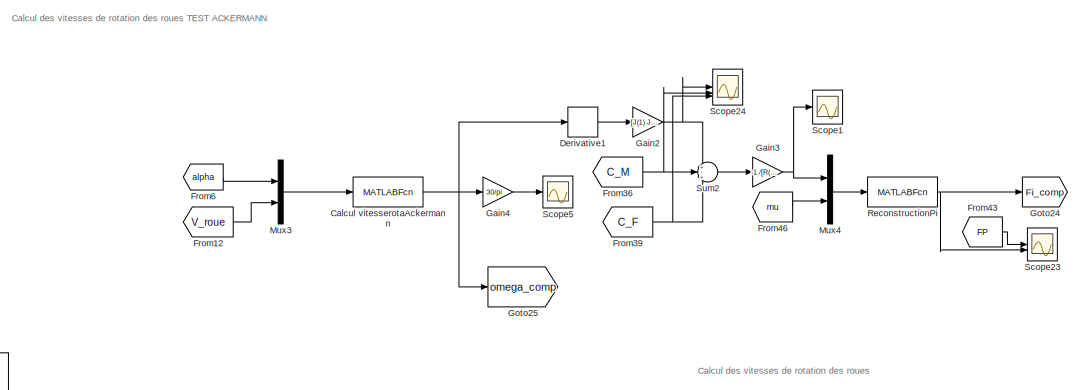
[diagram: root canvas - part 1/7, top right region]
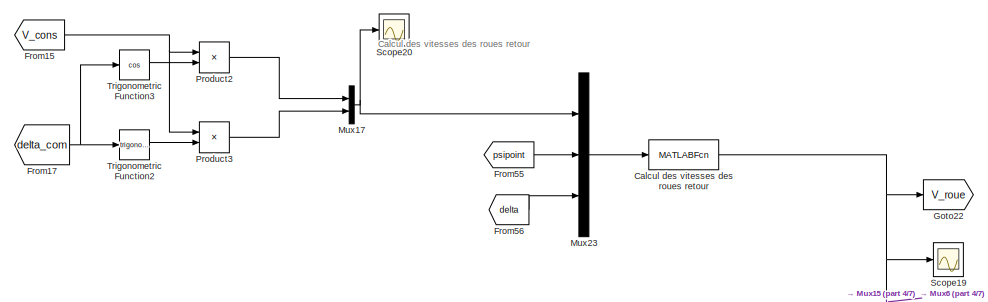
[diagram: root canvas - part 2/7, top center region]
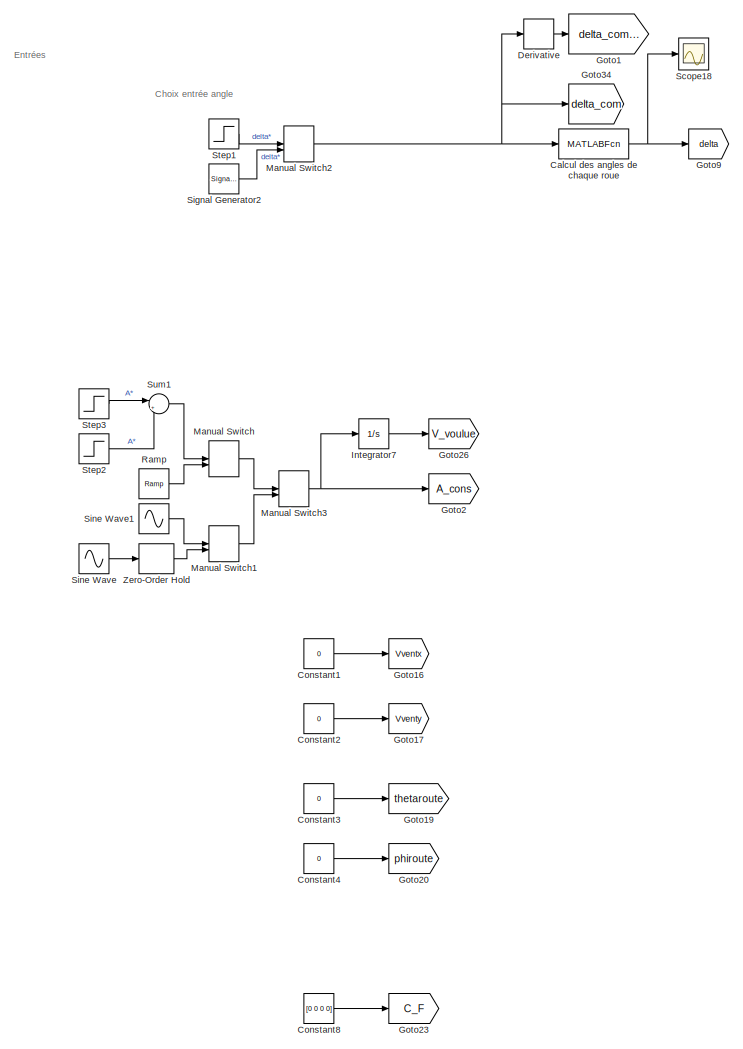
[diagram: root canvas - part 3/7, middle left region]
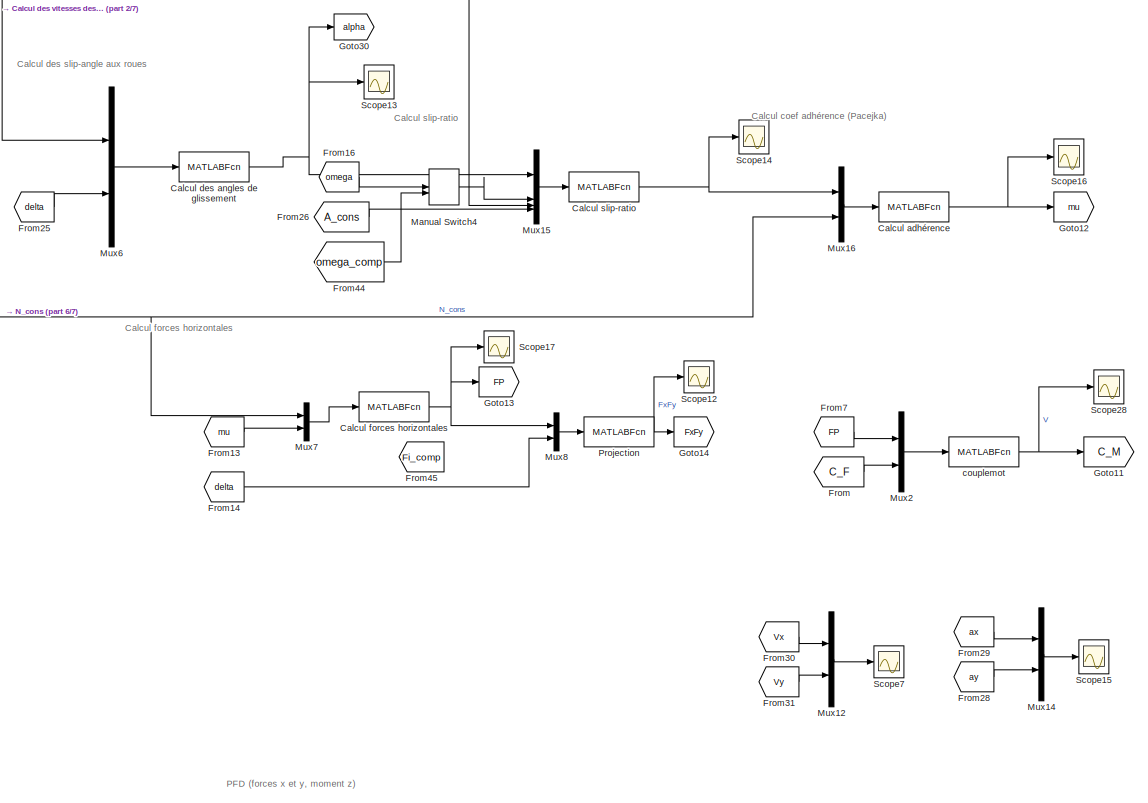
[diagram: root canvas - part 4/7, central region]
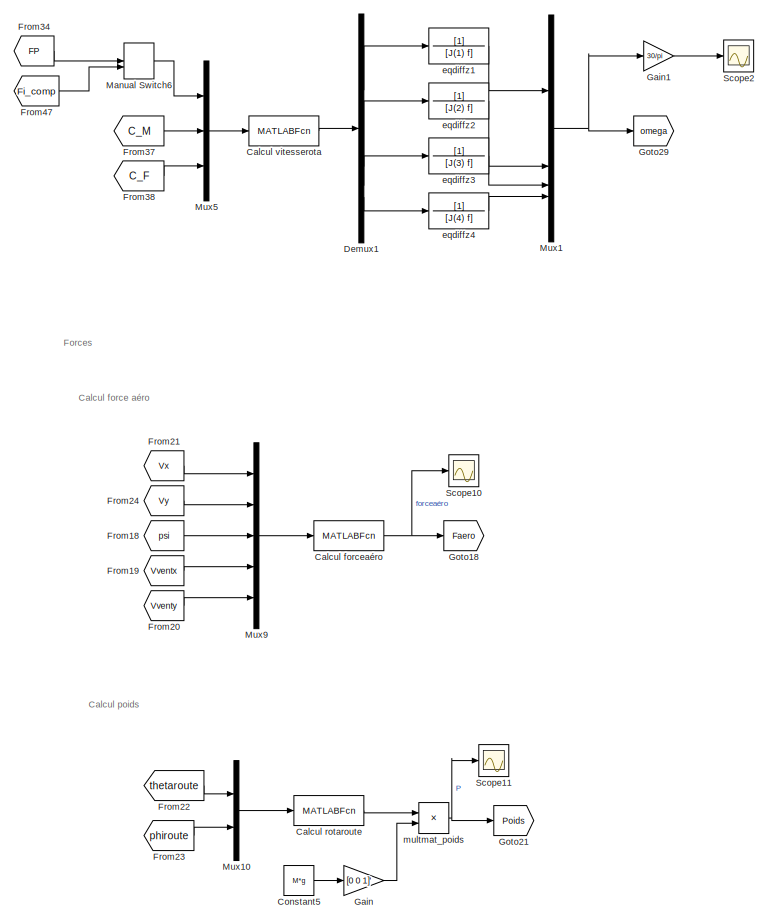
[diagram: root canvas - part 5/7, middle right region]
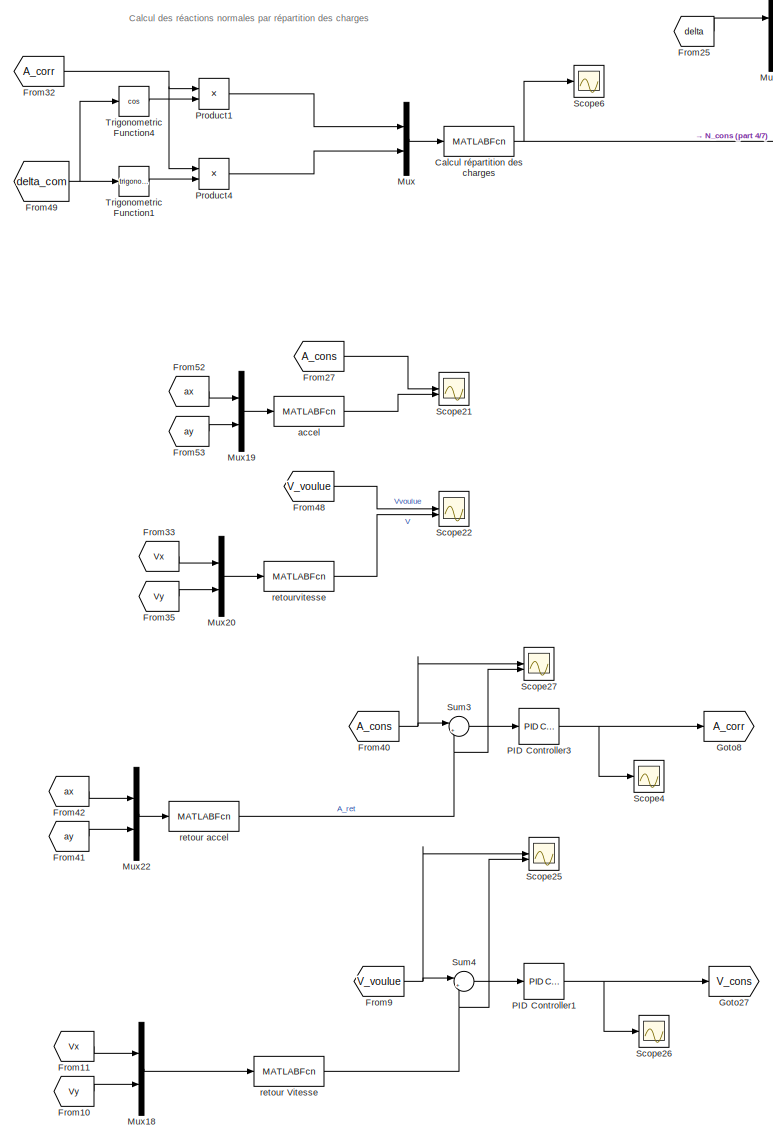
[diagram: root canvas - part 6/7, bottom center region]
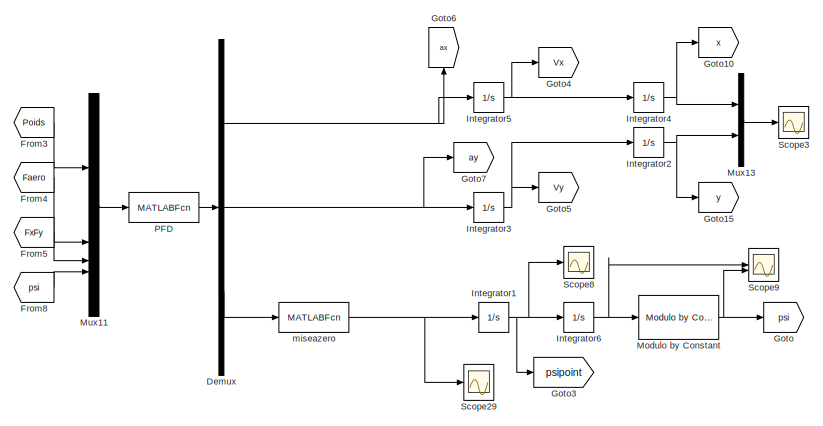
[diagram: root canvas - part 7/7, bottom center region]
MODEL slx_7ebd203fe06b
KIND model
CONFIG AbsTol = auto
CONFIG EnableMultiTasking = off
CONFIG FixedStep = auto
CONFIG MaxStep = auto
CONFIG MinStep = auto
CONFIG RelTol = 10e-12
CONFIG SampleTimeConstraint = Unconstrained
CONFIG SolverName = VariableStepAuto
CONFIG StartTime = 0.0
CONFIG StopTime = 20
BLOCK [MATLABFcn] Calcul adhérence
  MATLABFcn = calcul_adherence(u(1),u(2),u(3),u(4),u(5),u(6),u(7),u(8),Cte_1,Cte_2,Cte_3,Cte_4,u(9),u(10),u(11),u(12))
  OutputDimensions = 4*2
BLOCK [MATLABFcn] Calcul des angles de chaque roue
  MATLABFcn = calcul_delta(u,L,d_f)
  OutputDimensions = 4
BLOCK [MATLABFcn] Calcul des angles de glissement
  MATLABFcn = calcul_slipangle(u(1),u(2),u(3),u(4),u(5),u(6),u(7),u(8),u(9),u(10),u(11),u(12))
  OutputDimensions = 4
BLOCK [MATLABFcn] Calcul des vitesses des roues retour
  MATLABFcn = calcul_vitessesroues(u(1),u(2),u(3),u(4),u(5),u(6),u(7),d_f,d_r,l_f,l_r)
  OutputDimensions = 8
BLOCK [MATLABFcn] Calcul forceaéro
  MATLABFcn = calcul_forceaero(u(1),u(2),u(3),u(4),u(5),C_x,A_L,A_S,rho)
  OutputDimensions = 2
BLOCK [MATLABFcn] Calcul forces horizontales
  MATLABFcn = calcul_forces(u(1),u(2),u(3),u(4),u(5),u(6),u(7),u(8),u(9),u(10),u(11),u(12))
  OutputDimensions = 4*2
BLOCK [MATLABFcn] Calcul rotaroute
  MATLABFcn = calcul_rotaroute(u(1),u(2))
  Output1D = off
  OutputDimensions = [3 3]
BLOCK [MATLABFcn] Calcul répartition des charges
  MATLABFcn = calcul_N(u(1),u(2),M,L,l_r,h,g)
  OutputDimensions = 4
BLOCK [MATLABFcn] Calcul slip-ratio
  MATLABFcn = calcul_lambda(u(1),u(2),u(3),u(4),R(1),R(2),R(3),R(4),u(5),u(6),u(7),u(8),u(9),u(10),u(11),u(12),u(13),u(14),u(15),u(16),u(17))
  OutputDimensions = 4*2
BLOCK [MATLABFcn] Calcul vitesserota
  MATLABFcn = calcul_omega(u(1),u(2),u(3),u(4),u(5),u(6),u(7),u(8),u(9),u(10),u(11),u(12),u(13),u(14),u(15),u(16),R(1),R(2),R(3),R(4),J(1),J(2),J(3),J(4))
  OutputDimensions = 4
BLOCK [MATLABFcn] Calcul vitesserotaAckermann
  MATLABFcn = calcul_omegaackermann(u(1),u(2),u(3),u(4),u(5),u(6),u(7),u(8),u(9),u(10),u(11),u(12),R(1),R(2),R(3),R(4))
  OutputDimensions = 4
BLOCK [Constant] Constant1
  Value = 0
BLOCK [Constant] Constant2
  Value = 0
BLOCK [Constant] Constant3
  Value = 0
BLOCK [Constant] Constant4
  Value = 0
BLOCK [Constant] Constant5
  Value = M*g
  VectorParams1D = off
BLOCK [Constant] Constant8
  Value = [0 0 0 0]
BLOCK [Demux] Demux
  Outputs = 3
BLOCK [Demux] Demux1
BLOCK [Derivative] Derivative
BLOCK [Derivative] Derivative1
BLOCK [From] From
  GotoTag = C_F
BLOCK [From] From10
  GotoTag = Vy
BLOCK [From] From11
  GotoTag = Vx
BLOCK [From] From12
  GotoTag = V_roue
BLOCK [From] From13
  GotoTag = mu
BLOCK [From] From14
  GotoTag = delta
BLOCK [From] From15
  GotoTag = V_cons
BLOCK [From] From16
  GotoTag = omega
BLOCK [From] From17
  GotoTag = delta_com
BLOCK [From] From18
  GotoTag = psi
BLOCK [From] From19
  GotoTag = Vventx
BLOCK [From] From20
  GotoTag = Vventy
BLOCK [From] From21
  GotoTag = Vx
BLOCK [From] From22
  GotoTag = thetaroute
BLOCK [From] From23
  GotoTag = phiroute
BLOCK [From] From24
  GotoTag = Vy
BLOCK [From] From25
  GotoTag = delta
BLOCK [From] From26
  GotoTag = A_cons
BLOCK [From] From27
  GotoTag = A_cons
BLOCK [From] From28
  GotoTag = ay
BLOCK [From] From29
  GotoTag = ax
BLOCK [From] From3
  GotoTag = Poids
BLOCK [From] From30
  GotoTag = Vx
BLOCK [From] From31
  GotoTag = Vy
BLOCK [From] From32
  GotoTag = A_corr
BLOCK [From] From33
  GotoTag = Vx
BLOCK [From] From34
  GotoTag = FP
BLOCK [From] From35
  GotoTag = Vy
BLOCK [From] From36
  GotoTag = C_M
BLOCK [From] From37
  GotoTag = C_M
BLOCK [From] From38
  GotoTag = C_F
BLOCK [From] From39
  GotoTag = C_F
BLOCK [From] From4
  GotoTag = Faero
BLOCK [From] From40
  GotoTag = A_cons
BLOCK [From] From41
  GotoTag = ay
BLOCK [From] From42
  GotoTag = ax
BLOCK [From] From43
  GotoTag = FP
BLOCK [From] From44
  GotoTag = omega_comp
BLOCK [From] From45
  GotoTag = Fi_comp
BLOCK [From] From46
  GotoTag = mu
BLOCK [From] From47
  GotoTag = Fi_comp
BLOCK [From] From48
  GotoTag = V_voulue
BLOCK [From] From49
  GotoTag = delta_com
BLOCK [From] From5
  GotoTag = FxFy
BLOCK [From] From52
  GotoTag = ax
BLOCK [From] From53
  GotoTag = ay
BLOCK [From] From55
  GotoTag = psipoint
BLOCK [From] From56
  GotoTag = delta
BLOCK [From] From6
  GotoTag = alpha
BLOCK [From] From7
  GotoTag = FP
BLOCK [From] From8
  GotoTag = psi
BLOCK [From] From9
  GotoTag = V_voulue
BLOCK [Gain] Gain
  Gain = [0 0 1]'
BLOCK [Gain] Gain1
  Gain = 30/pi
BLOCK [Gain] Gain2
  Gain = [J(1) J(2) J(3) J(4)]
BLOCK [Gain] Gain3
  Gain = -1./[R(1) R(2) R(3) R(4)]
BLOCK [Gain] Gain4
  Gain = 30/pi
BLOCK [Goto] Goto
  GotoTag = psi
BLOCK [Goto] Goto1
  GotoTag = delta_compoint
BLOCK [Goto] Goto10
  GotoTag = x
  NameLocation = top
BLOCK [Goto] Goto11
  GotoTag = C_M
BLOCK [Goto] Goto12
  GotoTag = mu
BLOCK [Goto] Goto13
  GotoTag = FP
BLOCK [Goto] Goto14
  GotoTag = FxFy
BLOCK [Goto] Goto15
  GotoTag = y
  NameLocation = top
BLOCK [Goto] Goto16
  GotoTag = Vventx
BLOCK [Goto] Goto17
  GotoTag = Vventy
BLOCK [Goto] Goto18
  GotoTag = Faero
BLOCK [Goto] Goto19
  GotoTag = thetaroute
BLOCK [Goto] Goto2
  GotoTag = A_cons
BLOCK [Goto] Goto20
  GotoTag = phiroute
BLOCK [Goto] Goto21
  GotoTag = Poids
BLOCK [Goto] Goto22
  GotoTag = V_roue
BLOCK [Goto] Goto23
  GotoTag = C_F
BLOCK [Goto] Goto24
  GotoTag = Fi_comp
BLOCK [Goto] Goto25
  GotoTag = omega_comp
BLOCK [Goto] Goto26
  GotoTag = V_voulue
BLOCK [Goto] Goto27
  GotoTag = V_cons
BLOCK [Goto] Goto29
  GotoTag = omega
BLOCK [Goto] Goto3
  GotoTag = psipoint
BLOCK [Goto] Goto30
  GotoTag = alpha
BLOCK [Goto] Goto34
  GotoTag = delta_com
BLOCK [Goto] Goto4
  GotoTag = Vx
  NameLocation = top
BLOCK [Goto] Goto5
  GotoTag = Vy
  NameLocation = top
BLOCK [Goto] Goto6
  GotoTag = ax
  NameLocation = right
BLOCK [Goto] Goto7
  GotoTag = ay
BLOCK [Goto] Goto8
  GotoTag = A_corr
BLOCK [Goto] Goto9
  GotoTag = delta
BLOCK [Integrator] Integrator1
BLOCK [Integrator] Integrator2
BLOCK [Integrator] Integrator3
BLOCK [Integrator] Integrator4
BLOCK [Integrator] Integrator5
BLOCK [Integrator] Integrator6
BLOCK [Integrator] Integrator7
BLOCK [ManualSwitch] Manual Switch
BLOCK [ManualSwitch] Manual Switch1
  CurrentSetting = 0
BLOCK [ManualSwitch] Manual Switch2
BLOCK [ManualSwitch] Manual Switch3
BLOCK [ManualSwitch] Manual Switch4
BLOCK [ManualSwitch] Manual Switch6
BLOCK [Reference] Modulo by Constant  REF=embmathops/Modulo by Constant
  LibrarySourceBlock = embeddedMathLib/Modulo by Constant
  SourceBlock = embmathops/Modulo by Constant
  SourceType = fixed.system.ModByConstant
BLOCK [Mux] Mux
  DisplayOption = bar
  Inputs = 2
BLOCK [Mux] Mux1
  DisplayOption = bar
BLOCK [Mux] Mux10
  DisplayOption = bar
  Inputs = 2
BLOCK [Mux] Mux11
  DisplayOption = bar
BLOCK [Mux] Mux12
  DisplayOption = bar
  Inputs = 2
BLOCK [Mux] Mux13
  DisplayOption = bar
  Inputs = 2
BLOCK [Mux] Mux14
  DisplayOption = bar
  Inputs = 2
BLOCK [Mux] Mux15
  DisplayOption = bar
BLOCK [Mux] Mux16
  DisplayOption = bar
  Inputs = 2
BLOCK [Mux] Mux17
  DisplayOption = bar
  Inputs = 2
BLOCK [Mux] Mux18
  DisplayOption = bar
  Inputs = 2
BLOCK [Mux] Mux19
  DisplayOption = bar
  Inputs = 2
BLOCK [Mux] Mux2
  DisplayOption = bar
  Inputs = 2
BLOCK [Mux] Mux20
  DisplayOption = bar
  Inputs = 2
BLOCK [Mux] Mux22
  DisplayOption = bar
  Inputs = 2
BLOCK [Mux] Mux23
  DisplayOption = bar
  Inputs = 3
BLOCK [Mux] Mux3
  DisplayOption = bar
  Inputs = 2
BLOCK [Mux] Mux4
  DisplayOption = bar
  Inputs = 2
BLOCK [Mux] Mux5
  DisplayOption = bar
  Inputs = 3
BLOCK [Mux] Mux6
  DisplayOption = bar
  Inputs = 2
BLOCK [Mux] Mux7
  DisplayOption = bar
  Inputs = 2
BLOCK [Mux] Mux8
  DisplayOption = bar
  Inputs = 2
BLOCK [Mux] Mux9
  DisplayOption = bar
  Inputs = 5
BLOCK [MATLABFcn] PFD
  MATLABFcn = eqpfd(u(1),u(2),u(4),u(5),u(6),u(7),u(8),u(9),u(10),u(11),u(12),u(13),u(14),d_f,d_r,l_f,l_r,M,Iz)
  OutputDimensions = 3
BLOCK [Reference] PID Controller1  REF=slpidlib/PID Controller
  LibrarySourceBlock = simulink/Continuous/PID Controller
  SourceBlock = slpidlib/PID Controller
  SourceType = PID 1dof
BLOCK [Reference] PID Controller3  REF=slpidlib/PID Controller
  LibrarySourceBlock = simulink/Continuous/PID Controller
  SourceBlock = slpidlib/PID Controller
  SourceType = PID 1dof
BLOCK [Product] Product1
BLOCK [Product] Product2
BLOCK [Product] Product3
BLOCK [Product] Product4
BLOCK [MATLABFcn] Projection
  MATLABFcn = projection(u(1),u(2),u(3),u(4),u(5),u(6),u(7),u(8),u(9),u(10),u(11),u(12))
  OutputDimensions = 8
BLOCK [Reference] Ramp  REF=simulink/Sources/Ramp
  SourceBlock = simulink/Sources/Ramp
  SourceType = Ramp
BLOCK [MATLABFcn] ReconstructionPi
  MATLABFcn = reconstructionPi(u(1),u(2),u(3),u(4),u(5),u(6),u(7),u(8),u(9),u(10),u(11),u(12))
  OutputDimensions = 8
BLOCK [Scope] Scope1
  Floating = off
  NumInputPorts = 1
  ScopeSpecificationString = Simulink.scopes.TimeScopeBlockCfg('CurrentConfiguration', extmgr.ConfigurationSet(extmgr.Configuration('Core','General UI',true),extmgr.Configuration('Core','Source UI',true),extmgr.Configuration('Sources','WiredSimulink',true,'DataLoggingVariableName','ScopeData1'),extmgr.Configuration('Visuals','Time Domain',true,'SerializedDisplays',{struct('MinYLimReal','-27698.51113','MaxYLimReal','5633.99998...<+1954ch>
BLOCK [Scope] Scope10
  Floating = off
  NumInputPorts = 1
  ScopeSpecificationString = Simulink.scopes.TimeScopeBlockCfg('CurrentConfiguration', extmgr.ConfigurationSet(extmgr.Configuration('Core','General UI',true),extmgr.Configuration('Core','Source UI',true),extmgr.Configuration('Sources','WiredSimulink',true,'DataLoggingVariableName','ScopeData3'),extmgr.Configuration('Visuals','Time Domain',true,'SerializedDisplays',{struct('MinYLimReal','-14.3909','MaxYLimReal','1.59899','YLab...<+1612ch>
BLOCK [Scope] Scope11
  Floating = off
  NumInputPorts = 1
  ScopeSpecificationString = Simulink.scopes.TimeScopeBlockCfg('CurrentConfiguration', extmgr.ConfigurationSet(extmgr.Configuration('Core','General UI',true),extmgr.Configuration('Core','Source UI',true),extmgr.Configuration('Sources','WiredSimulink',true,'DataLoggingVariableName','ScopeData4'),extmgr.Configuration('Visuals','Time Domain',true,'SerializedDisplays',{struct('MinYLimReal','-490.5','MaxYLimReal','4414.5','YLabelR...<+1600ch>
BLOCK [Scope] Scope12
  Floating = off
  NumInputPorts = 1
  ScopeSpecificationString = Simulink.scopes.TimeScopeBlockCfg('CurrentConfiguration', extmgr.ConfigurationSet(extmgr.Configuration('Core','General UI',true),extmgr.Configuration('Core','Source UI',true),extmgr.Configuration('Sources','WiredSimulink',true,'DataLoggingVariableName','ScopeData5'),extmgr.Configuration('Visuals','Time Domain',true,'SerializedDisplays',{struct('MinYLimReal','-833.54378','MaxYLimReal','1694.81808',...<+1814ch>
BLOCK [Scope] Scope13
  Floating = off
  NumInputPorts = 1
  ScopeSpecificationString = Simulink.scopes.TimeScopeBlockCfg('CurrentConfiguration', extmgr.ConfigurationSet(extmgr.Configuration('Core','General UI',true),extmgr.Configuration('Core','Source UI',true),extmgr.Configuration('Sources','WiredSimulink',true,'DataLoggingVariableName','ScopeData6'),extmgr.Configuration('Visuals','Time Domain',true,'SerializedDisplays',{struct('MinYLimReal','-3.59324','MaxYLimReal','3.4938','YLabe...<+1774ch>
BLOCK [Scope] Scope14
  Floating = off
  NumInputPorts = 1
  ScopeSpecificationString = Simulink.scopes.TimeScopeBlockCfg('CurrentConfiguration', extmgr.ConfigurationSet(extmgr.Configuration('Core','General UI',true),extmgr.Configuration('Core','Source UI',true),extmgr.Configuration('Sources','WiredSimulink',true,'DataLoggingVariableName','ScopeData1'),extmgr.Configuration('Visuals','Time Domain',true,'SerializedDisplays',{struct('MinYLimReal','-1.44887','MaxYLimReal','1.44887','YLab...<+1900ch>
BLOCK [Scope] Scope15
  Floating = off
  NumInputPorts = 1
  ScopeSpecificationString = Simulink.scopes.TimeScopeBlockCfg('CurrentConfiguration', extmgr.ConfigurationSet(extmgr.Configuration('Core','General UI',true),extmgr.Configuration('Core','Source UI',true),extmgr.Configuration('Sources','WiredSimulink',true,'DataLoggingVariableName','ScopeData8'),extmgr.Configuration('Visuals','Time Domain',true,'SerializedDisplays',{struct('MinYLimReal','-13.98592','MaxYLimReal','13.2899','YLa...<+1656ch>
BLOCK [Scope] Scope16
  Floating = off
  NumInputPorts = 1
  ScopeSpecificationString = Simulink.scopes.TimeScopeBlockCfg('CurrentConfiguration', extmgr.ConfigurationSet(extmgr.Configuration('Core','General UI',true),extmgr.Configuration('Core','Source UI',true),extmgr.Configuration('Sources','WiredSimulink',true,'DataLoggingVariableName','ScopeData9'),extmgr.Configuration('Visuals','Time Domain',true,'SerializedDisplays',{struct('MinYLimReal','-1.24999','MaxYLimReal','1.24999','YLab...<+2059ch>
BLOCK [Scope] Scope17
  Floating = off
  NumInputPorts = 1
  ScopeSpecificationString = Simulink.scopes.TimeScopeBlockCfg('CurrentConfiguration', extmgr.ConfigurationSet(extmgr.Configuration('Core','General UI',true),extmgr.Configuration('Core','Source UI',true),extmgr.Configuration('Sources','WiredSimulink',true,'DataLoggingVariableName','ScopeData10'),extmgr.Configuration('Visuals','Time Domain',true,'SerializedDisplays',{struct('MinYLimReal','-826.53165','MaxYLimReal','1693.51719'...<+1991ch>
BLOCK [Scope] Scope18
  Floating = off
  NumInputPorts = 1
  ScopeSpecificationString = Simulink.scopes.TimeScopeBlockCfg('CurrentConfiguration', extmgr.ConfigurationSet(extmgr.Configuration('Core','General UI',true),extmgr.Configuration('Core','Source UI',true),extmgr.Configuration('Sources','WiredSimulink',true,'DataLoggingVariableName','ScopeData11'),extmgr.Configuration('Visuals','Time Domain',true,'SerializedDisplays',{struct('MinYLimReal','-1.00000','MaxYLimReal','1.00000','YLa...<+1729ch>
BLOCK [Scope] Scope19
  Floating = off
  NumInputPorts = 1
  ScopeSpecificationString = Simulink.scopes.TimeScopeBlockCfg('CurrentConfiguration', extmgr.ConfigurationSet(extmgr.Configuration('Core','General UI',true),extmgr.Configuration('Core','Source UI',true),extmgr.Configuration('Sources','WiredSimulink',true,'DataLoggingVariableName','ScopeData12'),extmgr.Configuration('Visuals','Time Domain',true,'SerializedDisplays',{struct('MinYLimReal','-190.11641','MaxYLimReal','1711.04767'...<+2046ch>
BLOCK [Scope] Scope2
  Floating = off
  NumInputPorts = 1
  ScopeSpecificationString = Simulink.scopes.TimeScopeBlockCfg('CurrentConfiguration', extmgr.ConfigurationSet(extmgr.Configuration('Core','General UI',true),extmgr.Configuration('Core','Source UI',true),extmgr.Configuration('Sources','WiredSimulink',true,'DataLoggingVariableName','ScopeData13'),extmgr.Configuration('Visuals','Time Domain',true,'SerializedDisplays',{struct('MinYLimReal','-2565.03539','MaxYLimReal','23085.3184...<+1674ch>
BLOCK [Scope] Scope20
  Floating = off
  NumInputPorts = 1
  ScopeSpecificationString = Simulink.scopes.TimeScopeBlockCfg('CurrentConfiguration', extmgr.ConfigurationSet(extmgr.Configuration('Core','General UI',true),extmgr.Configuration('Core','Source UI',true),extmgr.Configuration('Sources','WiredSimulink',true,'DataLoggingVariableName','ScopeData14'),extmgr.Configuration('Visuals','Time Domain',true,'SerializedDisplays',{struct('MinYLimReal','-70.62304','MaxYLimReal','635.60735','...<+1613ch>
BLOCK [Scope] Scope21
  Floating = off
  NumInputPorts = 2
  ScopeSpecificationString = Simulink.scopes.TimeScopeBlockCfg('CurrentConfiguration', extmgr.ConfigurationSet(extmgr.Configuration('Core','General UI',true),extmgr.Configuration('Core','Source UI',true),extmgr.Configuration('Sources','WiredSimulink',true,'DataLoggingVariableName','ScopeData15'),extmgr.Configuration('Visuals','Time Domain',true,'SerializedDisplays',{struct('MinYLimReal','1.69451','MaxYLimReal','3.14505','YLab...<+1656ch>
BLOCK [Scope] Scope22
  Floating = off
  NumInputPorts = 2
  ScopeSpecificationString = Simulink.scopes.TimeScopeBlockCfg('CurrentConfiguration', extmgr.ConfigurationSet(extmgr.Configuration('Core','General UI',true),extmgr.Configuration('Core','Source UI',true),extmgr.Configuration('Sources','WiredSimulink',true,'DataLoggingVariableName','ScopeData16'),extmgr.Configuration('Visuals','Time Domain',true,'SerializedDisplays',{struct('MinYLimReal','-25.00000','MaxYLimReal','225.00000','...<+1657ch>
BLOCK [Scope] Scope23
  Floating = off
  NumInputPorts = 2
  ScopeSpecificationString = Simulink.scopes.TimeScopeBlockCfg('CurrentConfiguration', extmgr.ConfigurationSet(extmgr.Configuration('Core','General UI',true),extmgr.Configuration('Core','Source UI',true),extmgr.Configuration('Sources','WiredSimulink',true,'DataLoggingVariableName','ScopeData3'),extmgr.Configuration('Visuals','Time Domain',true,'SerializedDisplays',{struct('MinYLimReal','-22775.68821','MaxYLimReal','5089.16194...<+2329ch>
BLOCK [Scope] Scope24
  Floating = off
  NumInputPorts = 3
  ScopeSpecificationString = Simulink.scopes.TimeScopeBlockCfg('CurrentConfiguration', extmgr.ConfigurationSet(extmgr.Configuration('Core','General UI',true),extmgr.Configuration('Core','Source UI',true),extmgr.Configuration('Sources','WiredSimulink',true,'DataLoggingVariableName','ScopeData2'),extmgr.Configuration('Visuals','Time Domain',true,'SerializedDisplays',{struct('MinYLimReal','-108.27134','MaxYLimReal','334.28767','...<+2026ch>
BLOCK [Scope] Scope25
  Floating = off
  NumInputPorts = 2
  ScopeSpecificationString = Simulink.scopes.TimeScopeBlockCfg('CurrentConfiguration', extmgr.ConfigurationSet(extmgr.Configuration('Core','General UI',true),extmgr.Configuration('Core','Source UI',true),extmgr.Configuration('Sources','WiredSimulink',true,'DataLoggingVariableName','ScopeData1'),extmgr.Configuration('Visuals','Time Domain',true,'SerializedDisplays',{struct('MinYLimReal','-5.5735','MaxYLimReal','50.16151','YLab...<+1640ch>
BLOCK [Scope] Scope26
  Floating = off
  NumInputPorts = 1
  ScopeSpecificationString = Simulink.scopes.TimeScopeBlockCfg('CurrentConfiguration', extmgr.ConfigurationSet(extmgr.Configuration('Core','General UI',true),extmgr.Configuration('Core','Source UI',true),extmgr.Configuration('Sources','WiredSimulink',true,'DataLoggingVariableName','ScopeData2'),extmgr.Configuration('Visuals','Time Domain',true,'SerializedDisplays',{struct('MinYLimReal','-34.53485','MaxYLimReal','309.73208','Y...<+1635ch>
BLOCK [Scope] Scope27
  Floating = off
  NumInputPorts = 2
  ScopeSpecificationString = Simulink.scopes.TimeScopeBlockCfg('CurrentConfiguration', extmgr.ConfigurationSet(extmgr.Configuration('Core','General UI',true),extmgr.Configuration('Core','Source UI',true),extmgr.Configuration('Sources','WiredSimulink',true,'DataLoggingVariableName','ScopeData21'),extmgr.Configuration('Visuals','Time Domain',true,'SerializedDisplays',{struct('MinYLimReal','-2.49963','MaxYLimReal','22.4967','YLa...<+1633ch>
BLOCK [Scope] Scope28
  Floating = off
  NumInputPorts = 1
  ScopeSpecificationString = Simulink.scopes.TimeScopeBlockCfg('CurrentConfiguration', extmgr.ConfigurationSet(extmgr.Configuration('Core','General UI',true),extmgr.Configuration('Core','Source UI',true),extmgr.Configuration('Sources','WiredSimulink',true,'DataLoggingVariableName','ScopeData3'),extmgr.Configuration('Visuals','Time Domain',true,'SerializedDisplays',{struct('MinYLimReal','-764.73704','MaxYLimReal','1218.56073',...<+1674ch>
BLOCK [Scope] Scope29
  Floating = off
  NumInputPorts = 1
  ScopeSpecificationString = Simulink.scopes.TimeScopeBlockCfg('CurrentConfiguration', extmgr.ConfigurationSet(extmgr.Configuration('Core','General UI',true),extmgr.Configuration('Core','Source UI',true),extmgr.Configuration('Sources','WiredSimulink',true,'DataLoggingVariableName','ScopeData1'),extmgr.Configuration('Visuals','Time Domain',true,'SerializedDisplays',{struct('MinYLimReal','-2.24978','MaxYLimReal','20.24803','YLa...<+1527ch>
BLOCK [Scope] Scope3
  Floating = off
  NumInputPorts = 1
  ScopeSpecificationString = Simulink.scopes.TimeScopeBlockCfg('CurrentConfiguration', extmgr.ConfigurationSet(extmgr.Configuration('Core','General UI',true),extmgr.Configuration('Core','Source UI',true),extmgr.Configuration('Sources','WiredSimulink',true,'DataLoggingVariableName','ScopeData23'),extmgr.Configuration('Visuals','Time Domain',true,'SerializedDisplays',{struct('MinYLimReal','-19.64525','MaxYLimReal','2.55231','YL...<+1574ch>
BLOCK [Scope] Scope4
  Floating = off
  NumInputPorts = 1
  ScopeSpecificationString = Simulink.scopes.TimeScopeBlockCfg('CurrentConfiguration', extmgr.ConfigurationSet(extmgr.Configuration('Core','General UI',true),extmgr.Configuration('Core','Source UI',true),extmgr.Configuration('Sources','WiredSimulink',true,'DataLoggingVariableName','ScopeData7'),extmgr.Configuration('Visuals','Time Domain',true,'SerializedDisplays',{struct('MinYLimReal','-12887.38936','MaxYLimReal','1467.48239...<+1653ch>
BLOCK [Scope] Scope5
  Floating = off
  NumInputPorts = 1
  ScopeSpecificationString = Simulink.scopes.TimeScopeBlockCfg('CurrentConfiguration', extmgr.ConfigurationSet(extmgr.Configuration('Core','General UI',true),extmgr.Configuration('Core','Source UI',true),extmgr.Configuration('Sources','WiredSimulink',true,'DataLoggingVariableName','ScopeData2'),extmgr.Configuration('Visuals','Time Domain',true,'SerializedDisplays',{struct('MinYLimReal','-1788.21445','MaxYLimReal','16093.93002...<+1671ch>
BLOCK [Scope] Scope6
  Floating = off
  NumInputPorts = 1
  ScopeSpecificationString = Simulink.scopes.TimeScopeBlockCfg('CurrentConfiguration', extmgr.ConfigurationSet(extmgr.Configuration('Core','General UI',true),extmgr.Configuration('Core','Source UI',true),extmgr.Configuration('Sources','WiredSimulink',true,'DataLoggingVariableName','ScopeData26'),extmgr.Configuration('Visuals','Time Domain',true,'SerializedDisplays',{struct('MinYLimReal','-744.11702','MaxYLimReal','2706.11702'...<+1670ch>
BLOCK [Scope] Scope7
  Floating = off
  NumInputPorts = 1
  ScopeSpecificationString = Simulink.scopes.TimeScopeBlockCfg('CurrentConfiguration', extmgr.ConfigurationSet(extmgr.Configuration('Core','General UI',true),extmgr.Configuration('Core','Source UI',true),extmgr.Configuration('Sources','WiredSimulink',true,'DataLoggingVariableName','ScopeData27'),extmgr.Configuration('Visuals','Time Domain',true,'SerializedDisplays',{struct('MinYLimReal','-14.0948','MaxYLimReal','14.1329','YLa...<+1615ch>
BLOCK [Scope] Scope8
  Floating = off
  NumInputPorts = 1
  ScopeSpecificationString = Simulink.scopes.TimeScopeBlockCfg('CurrentConfiguration', extmgr.ConfigurationSet(extmgr.Configuration('Core','General UI',true),extmgr.Configuration('Core','Source UI',true),extmgr.Configuration('Sources','WiredSimulink',true,'DataLoggingVariableName','ScopeData28'),extmgr.Configuration('Visuals','Time Domain',true,'SerializedDisplays',{struct('MinYLimReal','-0.0000000000000000000000000002','MaxY...<+1743ch>
BLOCK [Scope] Scope9
  Floating = off
  NumInputPorts = 2
  ScopeSpecificationString = Simulink.scopes.TimeScopeBlockCfg('CurrentConfiguration', extmgr.ConfigurationSet(extmgr.Configuration('Core','General UI',true),extmgr.Configuration('Core','Source UI',true),extmgr.Configuration('Sources','WiredSimulink',true),extmgr.Configuration('Visuals','Time Domain',true,'SerializedDisplays',{struct('MinYLimReal','-1.98445','MaxYLimReal','8.23398','YLabelReal','','MinYLimMag','0.00000','MaxY...<+1512ch>
BLOCK [SignalGenerator] Signal Generator2
  Frequency = 0.01
  Units = rad/sec
BLOCK [Sin] Sine Wave
  SampleTime = 0
BLOCK [Sin] Sine Wave1
  SampleTime = 0
BLOCK [Step] Step1
  After = 0
  SampleTime = 0
  Time = 0
BLOCK [Step] Step2
  After = 3
  SampleTime = 0
  Time = 0
BLOCK [Step] Step3
  After = 0
  SampleTime = 0
  Time = 5
BLOCK [Sum] Sum1
  Inputs = |++
BLOCK [Sum] Sum2
  Inputs = +-+
BLOCK [Sum] Sum3
  Inputs = |+-
BLOCK [Sum] Sum4
  Inputs = |+-
BLOCK [Trigonometry] Trigonometric Function1
BLOCK [Trigonometry] Trigonometric Function2
BLOCK [Trigonometry] Trigonometric Function3
  Operator = cos
BLOCK [Trigonometry] Trigonometric Function4
  Operator = cos
BLOCK [ZeroOrderHold] Zero-Order Hold
BLOCK [MATLABFcn] accel
  MATLABFcn = calcul_retourvitesse(u(1),u(2))
  OutputDimensions = 1
BLOCK [MATLABFcn] couplemot
  MATLABFcn = calcul_couplemot(u(1),u(3),u(5),u(7),u(9),u(10),u(11),u(12),R(1),R(2),R(3),R(4),J(1),J(2),J(3),J(4))
  OutputDimensions = 4
BLOCK [TransferFcn] eqdiffz1
  Denominator = [J(1) f]
BLOCK [TransferFcn] eqdiffz2
  Denominator = [J(2) f]
BLOCK [TransferFcn] eqdiffz3
  Denominator = [J(3) f]
BLOCK [TransferFcn] eqdiffz4
  Denominator = [J(4) f]
BLOCK [MATLABFcn] miseazero
  MATLABFcn = miseazero(u)
  OutputDimensions = 1
BLOCK [Product] multmat_poids
  Multiplication = Matrix(*)
BLOCK [MATLABFcn] retour Vitesse
  MATLABFcn = calcul_retourvitesse(u(1),u(2))
  OutputDimensions = 1
BLOCK [MATLABFcn] retour accel
  MATLABFcn = calcul_retourvitesse(u(1),u(2))
  OutputDimensions = 1
BLOCK [MATLABFcn] retourvitesse
  MATLABFcn = calcul_retourvitesse(u(1),u(2))
  OutputDimensions = 1
ANNOTATION (root): Calcul coef adhérence (Pacejka)
ANNOTATION (root): Calcul des réactions normales par répartition des charges
ANNOTATION (root): Calcul des slip-angle aux roues
ANNOTATION (root): Calcul des vitesses de rotation des roues
ANNOTATION (root): Calcul des vitesses de rotation des roues TEST ACKERMANN
ANNOTATION (root): Calcul des vitesses des roues retour
ANNOTATION (root): Calcul force aéro
ANNOTATION (root): Calcul forces horizontales
ANNOTATION (root): Calcul poids
ANNOTATION (root): Calcul slip-ratio
ANNOTATION (root): Choix entrée angle
ANNOTATION (root): Entrées
ANNOTATION (root): Forces
ANNOTATION (root): PFD (forces x et y, moment z)
NET Calcul adhérence:1 -> Goto12:1, Scope16:1
NET Calcul des angles de chaque roue:1 -> Goto9:1, Scope18:1
NET Calcul des angles de glissement:1 -> Goto30:1, Mux15:1, Scope13:1
NET Calcul des vitesses des roues retour:1 -> Goto22:1, Mux15:3, Mux6:1, Scope19:1
NET Calcul forceaéro:1 -> Goto18:1, Scope10:1
NET Calcul forces horizontales:1 -> Goto13:1, Mux8:1, Scope17:1
LINE Calcul rotaroute:1 -> multmat_poids:1
NET Calcul répartition des charges:1 -> Mux16:2, Mux7:1, Scope6:1
NET Calcul slip-ratio:1 -> Mux16:1, Scope14:1
LINE Calcul vitesserota:1 -> Demux1:1
NET Calcul vitesserotaAckermann:1 -> Derivative1:1, Gain4:1, Goto25:1
LINE Constant1:1 -> Goto16:1
LINE Constant2:1 -> Goto17:1
LINE Constant3:1 -> Goto19:1
LINE Constant4:1 -> Goto20:1
LINE Constant5:1 -> Gain:1
LINE Constant8:1 -> Goto23:1
LINE Demux1:1 -> eqdiffz1:1
LINE Demux1:2 -> eqdiffz2:1
LINE Demux1:3 -> eqdiffz3:1
LINE Demux1:4 -> eqdiffz4:1
NET Demux:1 -> Goto6:1, Integrator5:1
NET Demux:2 -> Goto7:1, Integrator3:1
LINE Demux:3 -> miseazero:1
LINE Derivative1:1 -> Gain2:1
LINE Derivative:1 -> Goto1:1
LINE From10:1 -> Mux18:2
LINE From11:1 -> Mux18:1
LINE From12:1 -> Mux3:2
LINE From13:1 -> Mux7:2
LINE From14:1 -> Mux8:2
NET From15:1 -> Product2:1, Product3:1
LINE From16:1 -> Manual Switch4:1
NET From17:1 -> Trigonometric Function2:1, Trigonometric Function3:1
LINE From18:1 -> Mux9:3
LINE From19:1 -> Mux9:4
LINE From20:1 -> Mux9:5
LINE From21:1 -> Mux9:1
LINE From22:1 -> Mux10:1
LINE From23:1 -> Mux10:2
LINE From24:1 -> Mux9:2
LINE From25:1 -> Mux6:2
LINE From26:1 -> Mux15:4
LINE From27:1 -> Scope21:1
LINE From28:1 -> Mux14:2
LINE From29:1 -> Mux14:1
LINE From30:1 -> Mux12:1
LINE From31:1 -> Mux12:2
NET From32:1 -> Product1:1, Product4:1
LINE From33:1 -> Mux20:1
LINE From34:1 -> Manual Switch6:1
LINE From35:1 -> Mux20:2
NET From36:1 -> Scope24:2, Sum2:2
LINE From37:1 -> Mux5:2
LINE From38:1 -> Mux5:3
NET From39:1 -> Scope24:3, Sum2:3
LINE From3:1 -> Mux11:1
NET From40:1 -> Scope27:1, Sum3:1
LINE From41:1 -> Mux22:2
LINE From42:1 -> Mux22:1
LINE From43:1 -> Scope23:1
LINE From44:1 -> Manual Switch4:2
LINE From46:1 -> Mux4:2
LINE From47:1 -> Manual Switch6:2
LINE From48:1 -> Scope22:1
NET From49:1 -> Trigonometric Function1:1, Trigonometric Function4:1
LINE From4:1 -> Mux11:2
LINE From52:1 -> Mux19:1
LINE From53:1 -> Mux19:2
LINE From55:1 -> Mux23:2
LINE From56:1 -> Mux23:3
LINE From5:1 -> Mux11:3
LINE From6:1 -> Mux3:1
LINE From7:1 -> Mux2:1
LINE From8:1 -> Mux11:4
NET From9:1 -> Scope25:1, Sum4:1
LINE From:1 -> Mux2:2
LINE Gain1:1 -> Scope2:1
NET Gain2:1 -> Scope24:1, Sum2:1
NET Gain3:1 -> Mux4:1, Scope1:1
LINE Gain4:1 -> Scope5:1
LINE Gain:1 -> multmat_poids:2
NET Integrator1:1 -> Goto3:1, Integrator6:1, Scope8:1
NET Integrator2:1 -> Goto15:1, Mux13:2
NET Integrator3:1 -> Goto5:1, Integrator2:1
NET Integrator4:1 -> Goto10:1, Mux13:1
NET Integrator5:1 -> Goto4:1, Integrator4:1
NET Integrator6:1 -> Modulo by Constant:1, Scope9:1
LINE Integrator7:1 -> Goto26:1
LINE Manual Switch1:1 -> Manual Switch3:2
NET Manual Switch2:1 -> Calcul des angles de chaque roue:1, Derivative:1, Goto34:1
NET Manual Switch3:1 -> Goto2:1, Integrator7:1
LINE Manual Switch4:1 -> Mux15:2
LINE Manual Switch6:1 -> Mux5:1
LINE Manual Switch:1 -> Manual Switch3:1
NET Modulo by Constant:1 -> Goto:1, Scope9:2
LINE Mux10:1 -> Calcul rotaroute:1
LINE Mux11:1 -> PFD:1
LINE Mux12:1 -> Scope7:1
LINE Mux13:1 -> Scope3:1
LINE Mux14:1 -> Scope15:1
LINE Mux15:1 -> Calcul slip-ratio:1
LINE Mux16:1 -> Calcul adhérence:1
NET Mux17:1 -> Mux23:1, Scope20:1
LINE Mux18:1 -> retour Vitesse:1
LINE Mux19:1 -> accel:1
NET Mux1:1 -> Gain1:1, Goto29:1
LINE Mux20:1 -> retourvitesse:1
LINE Mux22:1 -> retour accel:1
LINE Mux23:1 -> Calcul des vitesses des roues retour:1
LINE Mux2:1 -> couplemot:1
LINE Mux3:1 -> Calcul vitesserotaAckermann:1
LINE Mux4:1 -> ReconstructionPi:1
LINE Mux5:1 -> Calcul vitesserota:1
LINE Mux6:1 -> Calcul des angles de glissement:1
LINE Mux7:1 -> Calcul forces horizontales:1
LINE Mux8:1 -> Projection:1
LINE Mux9:1 -> Calcul forceaéro:1
LINE Mux:1 -> Calcul répartition des charges:1
LINE PFD:1 -> Demux:1
NET PID Controller1:1 -> Goto27:1, Scope26:1
NET PID Controller3:1 -> Goto8:1, Scope4:1
LINE Product1:1 -> Mux:1
LINE Product2:1 -> Mux17:1
LINE Product3:1 -> Mux17:2
LINE Product4:1 -> Mux:2
NET Projection:1 -> Goto14:1, Scope12:1
LINE Ramp:1 -> Manual Switch:2
NET ReconstructionPi:1 -> Goto24:1, Scope23:2
LINE Signal Generator2:1 -> Manual Switch2:2
LINE Sine Wave1:1 -> Manual Switch1:1
LINE Sine Wave:1 -> Zero-Order Hold:1
LINE Step1:1 -> Manual Switch2:1
LINE Step2:1 -> Sum1:2
LINE Step3:1 -> Sum1:1
LINE Sum1:1 -> Manual Switch:1
LINE Sum2:1 -> Gain3:1
LINE Sum3:1 -> PID Controller3:1
LINE Sum4:1 -> PID Controller1:1
LINE Trigonometric Function1:1 -> Product4:2
LINE Trigonometric Function2:1 -> Product3:2
LINE Trigonometric Function3:1 -> Product2:2
LINE Trigonometric Function4:1 -> Product1:2
LINE Zero-Order Hold:1 -> Manual Switch1:2
LINE accel:1 -> Scope21:2
NET couplemot:1 -> Goto11:1, Scope28:1
LINE eqdiffz1:1 -> Mux1:1
LINE eqdiffz2:1 -> Mux1:2
LINE eqdiffz3:1 -> Mux1:3
LINE eqdiffz4:1 -> Mux1:4
NET miseazero:1 -> Integrator1:1, Scope29:1
NET multmat_poids:1 -> Goto21:1, Scope11:1
NET retour Vitesse:1 -> Scope25:2, Sum4:2
NET retour accel:1 -> Scope27:2, Sum3:2
LINE retourvitesse:1 -> Scope22:2
note: NET lines group one-source signal fan-out (src -> all destinations, sorted); 1:1 wires keep LINE
